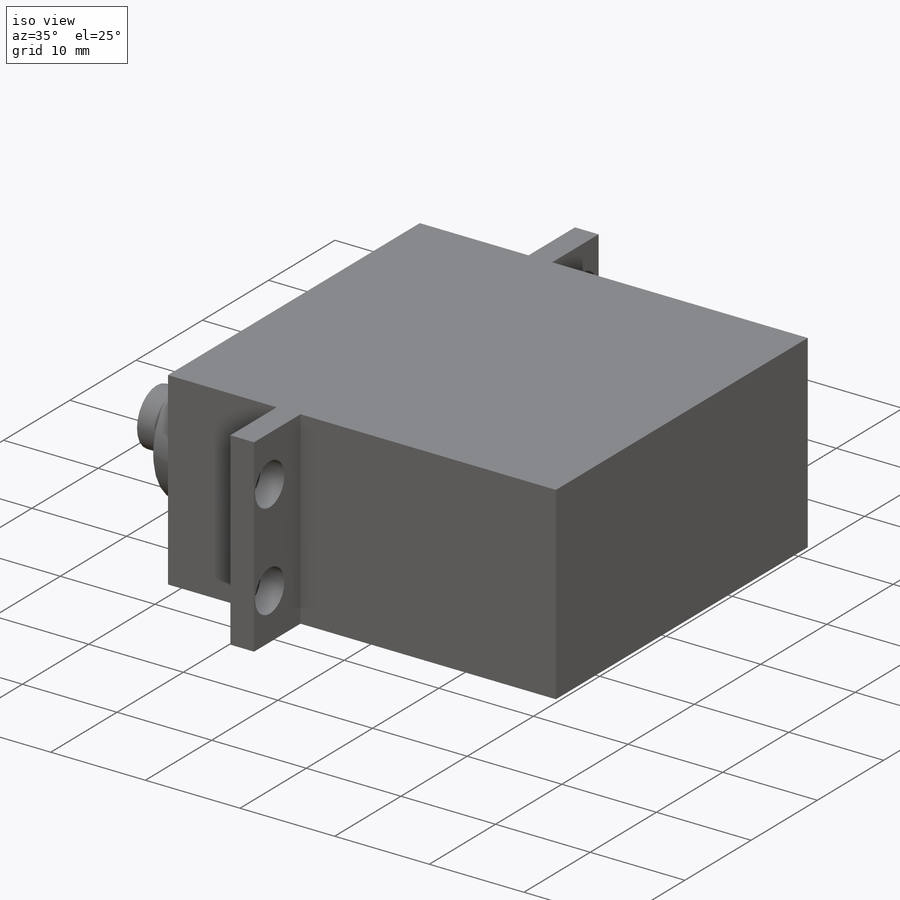
[diagram: iso view]
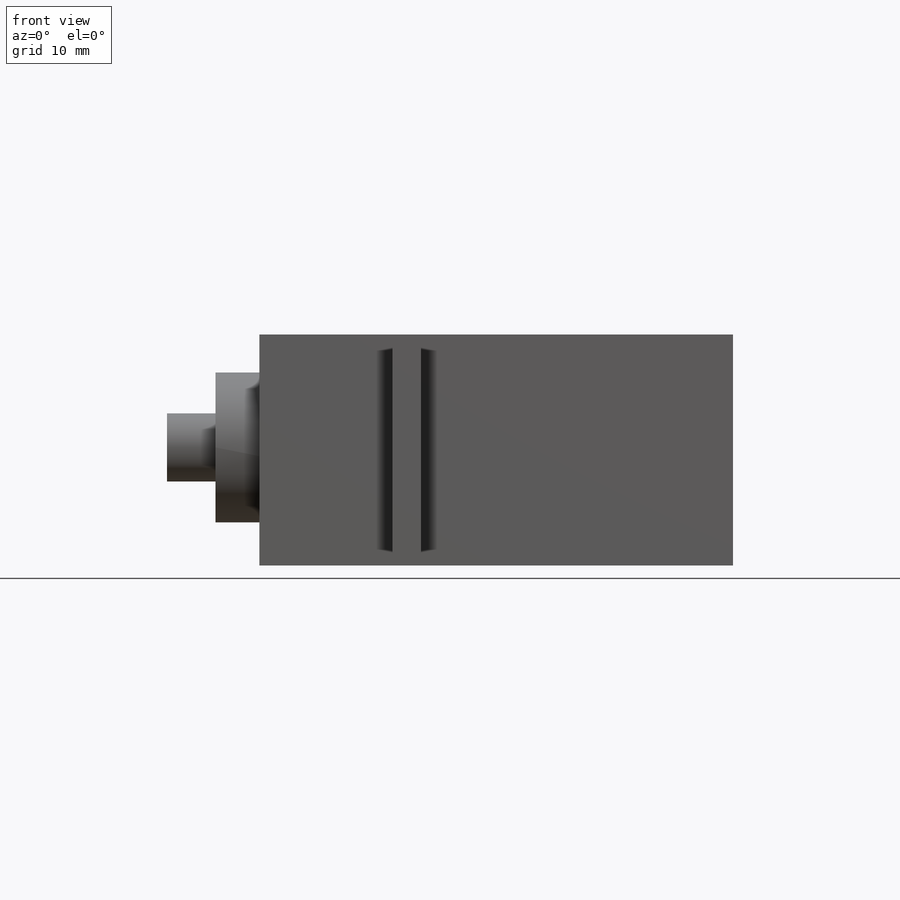
[diagram: front view]
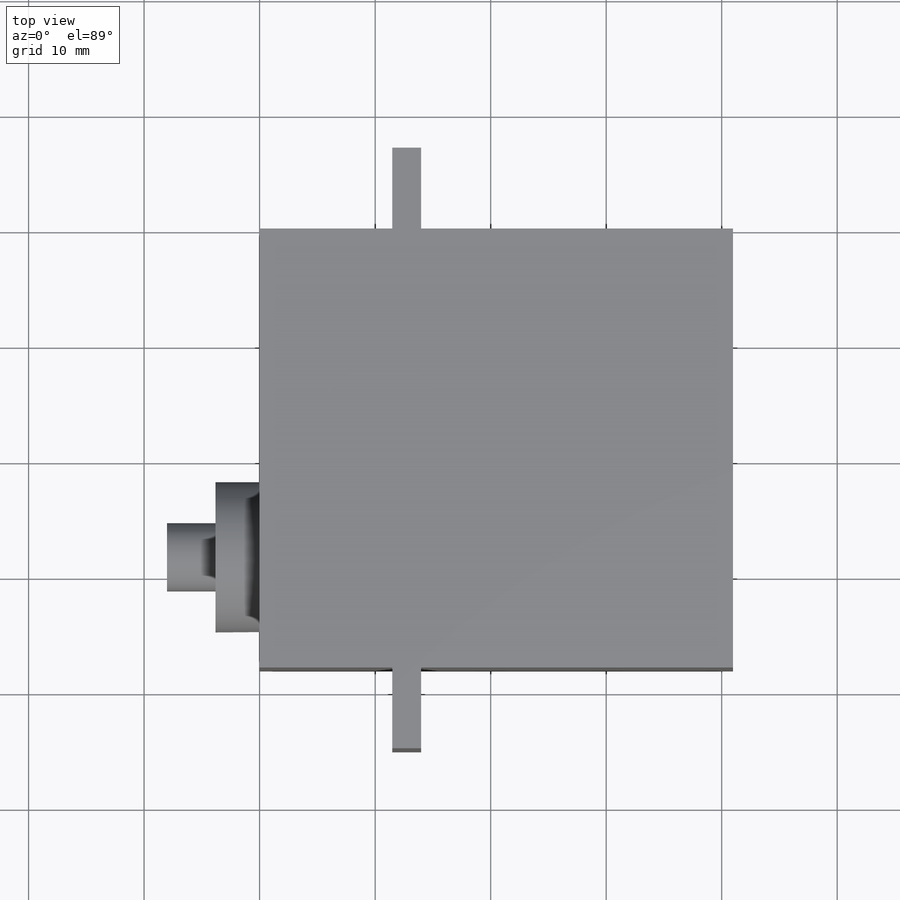
[diagram: top view]
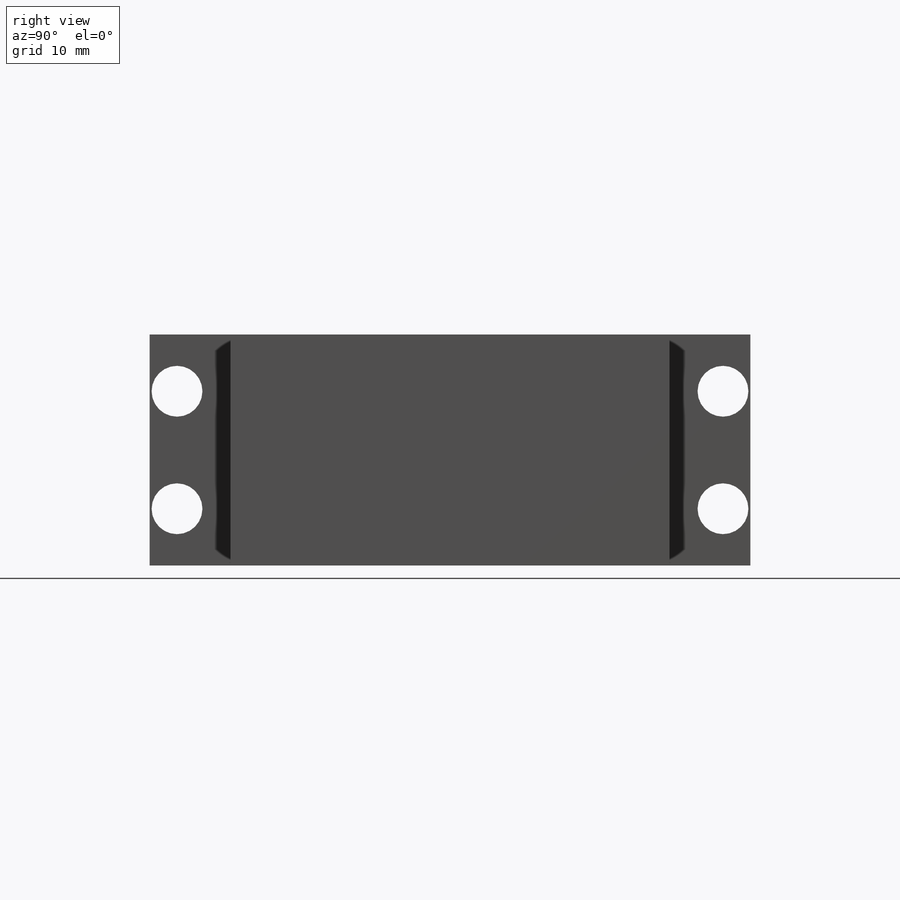
[diagram: right view]
SOLIDWORKS PART (.sldprt)
format: sldprt  version: not decoded by parser v0  size: 145,408 bytes
history: native  units: mm
features: sketch x6, extrude x4, material x1, hole x1 (+14 scaffold rows collapsed)
feature tree (26):
  scaffold x14  (default folders/planes/origin — collapsed)
  material  "Material <not specified>"
  sketch  "Sketch1"  dims[D1=20.0mm D2=41.0mm]
  extrude  "Extrude1"  Depth=38mm
  sketch  "Sketch2"  dims[D1=2.5mm D2=27.0mm D3=7.0mm D4=7.0mm]
  extrude  "Extrude2"  [1 undecoded]
  sketch  "Sketch3"  dims[D1=13.0mm D2=9.7mm]
  extrude  "Extrude3"  Depth=3.8mm
  sketch  "Sketch4"  dims[D1=5.9mm]
  extrude  "Extrude4"  Depth=4.2mm
  hole  "Ø4.4 (4.4) Diameter Hole1"  Diameter=4.4mm Depth=150mm
  sketch  "3DSketch1"  dims[D1=10.17mm D2=47.26mm]
  sketch  "Sketch7"  dims[hole-wizard template sketch: 46 standard entries collapsed; hole parameters kept: c15.Hole Dia.=4.4mm c15.Hole Depth=150.0mm c15.D3=~14.816244mm c15.Drill Angle=118.0deg]
decode coverage: 10 of 11 modeling features carry decoded parameters
note: ~ marks probable driven/reference dimensions
note: 1 parameter value undecoded
note: suppression state not decoded; provenance and decode notes live in map.json
